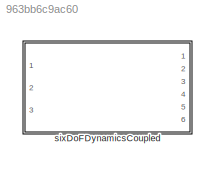
MODEL slx_963bb6c9ac60
KIND library
CONFIG AbsTol = auto
CONFIG EnableMultiTasking = off
CONFIG FixedStep = auto
CONFIG MaxStep = auto
CONFIG MinStep = auto
CONFIG RelTol = 1e-3
CONFIG SampleTimeConstraint = Unconstrained
CONFIG SolverName = VariableStepAuto
CONFIG StartTime = 0.0
CONFIG StopTime = 10.0
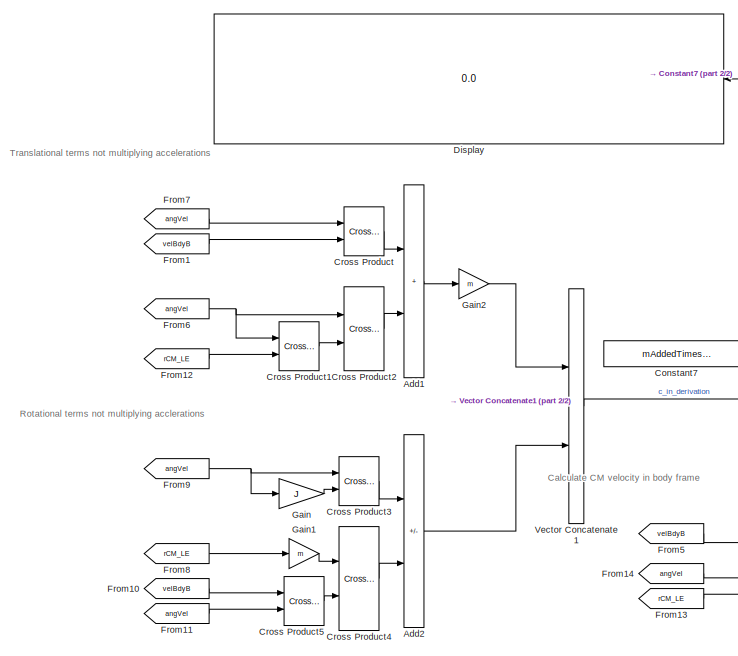
[diagram: sixDoFDynamicsCoupled - part 1/2, left side, full height]
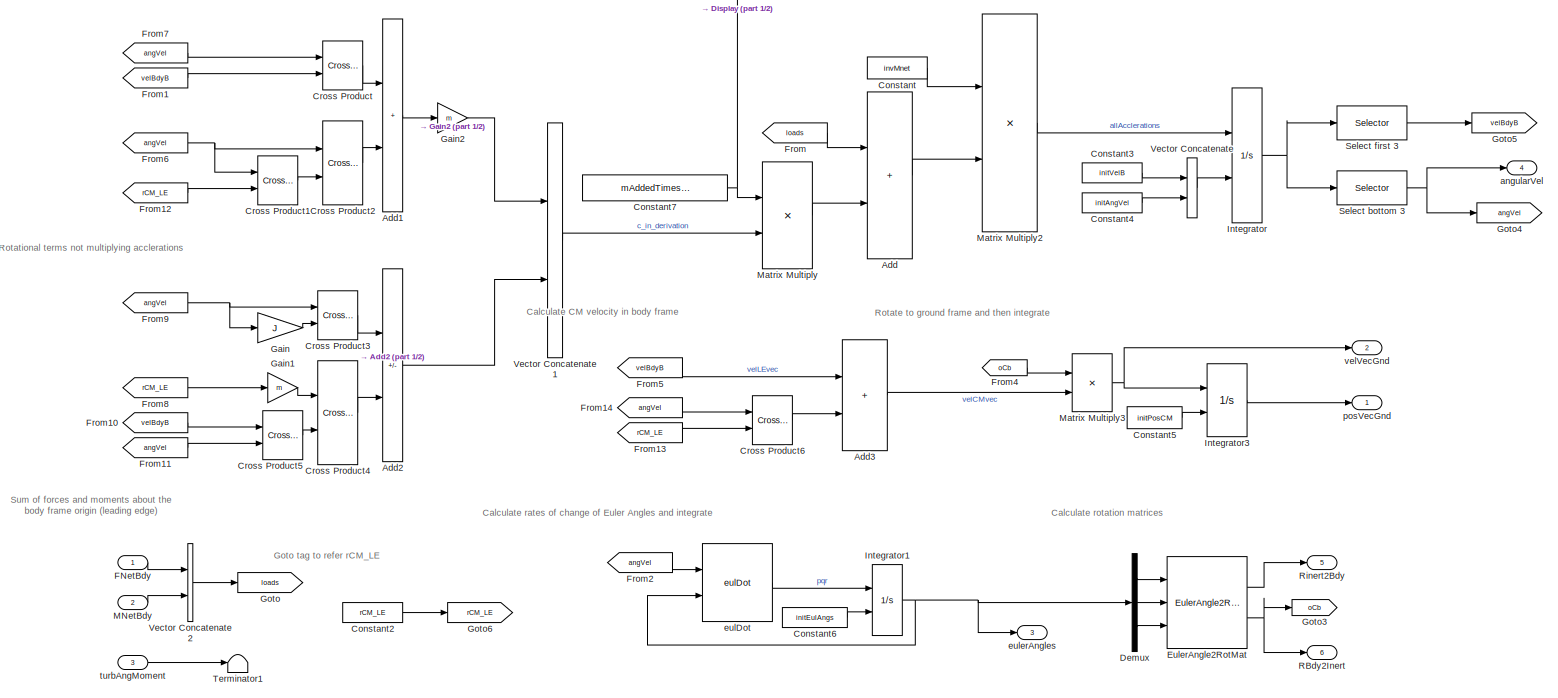
[diagram: sixDoFDynamicsCoupled - part 2/2, most of the canvas]
BLOCK [SubSystem] sixDoFDynamicsCoupled
  Ports = [3, 6]
  RequestExecContextInheritance = off
  VariantControl = (default)
BLOCK [Sum] sixDoFDynamicsCoupled/Add
  IconShape = rectangular
  Ports = [2, 1]
BLOCK [Sum] sixDoFDynamicsCoupled/Add1
  IconShape = rectangular
  Ports = [2, 1]
BLOCK [Sum] sixDoFDynamicsCoupled/Add2
  IconShape = rectangular
  Inputs = +-
  Ports = [2, 1]
BLOCK [Sum] sixDoFDynamicsCoupled/Add3
  IconShape = rectangular
  Ports = [2, 1]
BLOCK [Constant] sixDoFDynamicsCoupled/Constant
  Value = invMnet
  VectorParams1D = off
BLOCK [Constant] sixDoFDynamicsCoupled/Constant2
  Value = rCM_LE
  VectorParams1D = off
BLOCK [Constant] sixDoFDynamicsCoupled/Constant3
  Value = initVelB
  VectorParams1D = off
BLOCK [Constant] sixDoFDynamicsCoupled/Constant4
  Value = initAngVel
  VectorParams1D = off
BLOCK [Constant] sixDoFDynamicsCoupled/Constant5
  Value = initPosCM
  VectorParams1D = off
BLOCK [Constant] sixDoFDynamicsCoupled/Constant6
  Value = initEulAngs
  VectorParams1D = off
BLOCK [Constant] sixDoFDynamicsCoupled/Constant7
  Value = mAddedTimesMInvMinusEye
  VectorParams1D = off
BLOCK [Reference] sixDoFDynamicsCoupled/Cross Product  REF=vrlib/Utilities/Cross Product
  Ports = [2, 1]
  SourceBlock = vrlib/Utilities/Cross Product
  SourceProductBaseCode = SL
  SourceType = Cross Product
BLOCK [Reference] sixDoFDynamicsCoupled/Cross Product1  REF=vrlib/Utilities/Cross Product
  Ports = [2, 1]
  SourceBlock = vrlib/Utilities/Cross Product
  SourceProductBaseCode = SL
  SourceType = Cross Product
BLOCK [Reference] sixDoFDynamicsCoupled/Cross Product2  REF=vrlib/Utilities/Cross Product
  Ports = [2, 1]
  SourceBlock = vrlib/Utilities/Cross Product
  SourceProductBaseCode = SL
  SourceType = Cross Product
BLOCK [Reference] sixDoFDynamicsCoupled/Cross Product3  REF=vrlib/Utilities/Cross Product
  Ports = [2, 1]
  SourceBlock = vrlib/Utilities/Cross Product
  SourceProductBaseCode = SL
  SourceType = Cross Product
BLOCK [Reference] sixDoFDynamicsCoupled/Cross Product4  REF=vrlib/Utilities/Cross Product
  Ports = [2, 1]
  SourceBlock = vrlib/Utilities/Cross Product
  SourceProductBaseCode = SL
  SourceType = Cross Product
BLOCK [Reference] sixDoFDynamicsCoupled/Cross Product5  REF=vrlib/Utilities/Cross Product
  Ports = [2, 1]
  SourceBlock = vrlib/Utilities/Cross Product
  SourceProductBaseCode = SL
  SourceType = Cross Product
BLOCK [Reference] sixDoFDynamicsCoupled/Cross Product6  REF=vrlib/Utilities/Cross Product
  Ports = [2, 1]
  SourceBlock = vrlib/Utilities/Cross Product
  SourceProductBaseCode = SL
  SourceType = Cross Product
BLOCK [Demux] sixDoFDynamicsCoupled/Demux
  Outputs = 3
  Ports = [1, 3]
BLOCK [Display] sixDoFDynamicsCoupled/Display
  Decimation = 1
  NameLocation = top
  Ports = [1]
BLOCK [Reference] sixDoFDynamicsCoupled/EulerAngle2RotMat  REF=eulAng2RotMat_ul/EulerAngle2RotMat
  Ports = [3, 2]
  SourceBlock = eulAng2RotMat_ul/EulerAngle2RotMat
  SourceType = SubSystem
BLOCK [Inport] sixDoFDynamicsCoupled/FNetBdy
BLOCK [From] sixDoFDynamicsCoupled/From
  GotoTag = loads
BLOCK [From] sixDoFDynamicsCoupled/From1
  GotoTag = velBdyB
BLOCK [From] sixDoFDynamicsCoupled/From10
  GotoTag = velBdyB
BLOCK [From] sixDoFDynamicsCoupled/From11
  GotoTag = angVel
BLOCK [From] sixDoFDynamicsCoupled/From12
  GotoTag = rCM_LE
BLOCK [From] sixDoFDynamicsCoupled/From13
  GotoTag = rCM_LE
BLOCK [From] sixDoFDynamicsCoupled/From14
  GotoTag = angVel
BLOCK [From] sixDoFDynamicsCoupled/From2
  GotoTag = angVel
BLOCK [From] sixDoFDynamicsCoupled/From4
  GotoTag = oCb
BLOCK [From] sixDoFDynamicsCoupled/From5
  GotoTag = velBdyB
BLOCK [From] sixDoFDynamicsCoupled/From6
  GotoTag = angVel
BLOCK [From] sixDoFDynamicsCoupled/From7
  GotoTag = angVel
BLOCK [From] sixDoFDynamicsCoupled/From8
  GotoTag = rCM_LE
BLOCK [From] sixDoFDynamicsCoupled/From9
  GotoTag = angVel
BLOCK [Gain] sixDoFDynamicsCoupled/Gain
  Gain = J
  Multiplication = Matrix(K*u)
BLOCK [Gain] sixDoFDynamicsCoupled/Gain1
  Gain = m
BLOCK [Gain] sixDoFDynamicsCoupled/Gain2
  Gain = m
BLOCK [Goto] sixDoFDynamicsCoupled/Goto
  GotoTag = loads
BLOCK [Goto] sixDoFDynamicsCoupled/Goto3
  GotoTag = oCb
BLOCK [Goto] sixDoFDynamicsCoupled/Goto4
  GotoTag = angVel
BLOCK [Goto] sixDoFDynamicsCoupled/Goto5
  GotoTag = velBdyB
BLOCK [Goto] sixDoFDynamicsCoupled/Goto6
  GotoTag = rCM_LE
BLOCK [Integrator] sixDoFDynamicsCoupled/Integrator
  InitialConditionSource = external
  Ports = [2, 1]
BLOCK [Integrator] sixDoFDynamicsCoupled/Integrator1
  InitialCondition = initEulAngs
  InitialConditionSource = external
  Ports = [2, 1]
BLOCK [Integrator] sixDoFDynamicsCoupled/Integrator3
  InitialCondition = initPos
  InitialConditionSource = external
  Ports = [2, 1]
BLOCK [Inport] sixDoFDynamicsCoupled/MNetBdy
  Port = 2
BLOCK [Product] sixDoFDynamicsCoupled/Matrix Multiply
  Multiplication = Matrix(*)
  Ports = [2, 1]
BLOCK [Product] sixDoFDynamicsCoupled/Matrix Multiply2
  Multiplication = Matrix(*)
  Ports = [2, 1]
BLOCK [Product] sixDoFDynamicsCoupled/Matrix Multiply3
  Multiplication = Matrix(*)
  Ports = [2, 1]
BLOCK [Outport] sixDoFDynamicsCoupled/RBdy2Inert
  Port = 6
  VectorParamsAs1DForOutWhenUnconnected = off
BLOCK [Outport] sixDoFDynamicsCoupled/Rinert2Bdy
  Port = 5
  VectorParamsAs1DForOutWhenUnconnected = off
BLOCK [Selector] sixDoFDynamicsCoupled/Select bottom 3
  IndexOptions = Index vector (dialog),Index vector (dialog)
  Indices = [4 5 6],1
  InputPortWidth = 6
  NumberOfDimensions = 2
  OutputSizes = 1,1
  Ports = [1, 1]
BLOCK [Selector] sixDoFDynamicsCoupled/Select first 3
  IndexOptions = Index vector (dialog),Index vector (dialog)
  Indices = [1 2 3],1
  InputPortWidth = 6
  NumberOfDimensions = 2
  OutputSizes = 1,1
  Ports = [1, 1]
BLOCK [Terminator] sixDoFDynamicsCoupled/Terminator1
BLOCK [Concatenate] sixDoFDynamicsCoupled/Vector Concatenate
  Ports = [2, 1]
BLOCK [Concatenate] sixDoFDynamicsCoupled/Vector Concatenate1
  Ports = [2, 1]
BLOCK [Concatenate] sixDoFDynamicsCoupled/Vector Concatenate2
  Ports = [2, 1]
BLOCK [Outport] sixDoFDynamicsCoupled/angularVel
  Port = 4
  VectorParamsAs1DForOutWhenUnconnected = off
BLOCK [Reference] sixDoFDynamicsCoupled/eulDot  REF=eulDot/eulDot
  Ports = [2, 1]
  SourceBlock = eulDot/eulDot
  SourceType = SubSystem
BLOCK [Outport] sixDoFDynamicsCoupled/eulerAngles
  Port = 3
  VectorParamsAs1DForOutWhenUnconnected = off
BLOCK [Outport] sixDoFDynamicsCoupled/posVecGnd
  VectorParamsAs1DForOutWhenUnconnected = off
BLOCK [Inport] sixDoFDynamicsCoupled/turbAngMoment
  Port = 3
BLOCK [Outport] sixDoFDynamicsCoupled/velVecGnd
  Port = 2
  VectorParamsAs1DForOutWhenUnconnected = off
ANNOTATION sixDoFDynamicsCoupled: Calculate CM velocity in body frame
ANNOTATION sixDoFDynamicsCoupled: Calculate rates of change of Euler Angles and integrate
ANNOTATION sixDoFDynamicsCoupled: Calculate rotation matrices
ANNOTATION sixDoFDynamicsCoupled: Goto tag to refer rCM_LE
ANNOTATION sixDoFDynamicsCoupled: Rotate to ground frame and then integrate
ANNOTATION sixDoFDynamicsCoupled: Rotational terms not multiplying acclerations
ANNOTATION sixDoFDynamicsCoupled: Sum of forces and moments about the body frame origin (leading edge)
ANNOTATION sixDoFDynamicsCoupled: Translational terms not multiplying accelerations
LINE sixDoFDynamicsCoupled/Add1:1 -> sixDoFDynamicsCoupled/Gain2:1
LINE sixDoFDynamicsCoupled/Add2:1 -> sixDoFDynamicsCoupled/Vector Concatenate1:2
LINE sixDoFDynamicsCoupled/Add3:1 -> sixDoFDynamicsCoupled/Matrix Multiply3:2
LINE sixDoFDynamicsCoupled/Add:1 -> sixDoFDynamicsCoupled/Matrix Multiply2:2
LINE sixDoFDynamicsCoupled/Constant2:1 -> sixDoFDynamicsCoupled/Goto6:1
LINE sixDoFDynamicsCoupled/Constant3:1 -> sixDoFDynamicsCoupled/Vector Concatenate:1
LINE sixDoFDynamicsCoupled/Constant4:1 -> sixDoFDynamicsCoupled/Vector Concatenate:2
LINE sixDoFDynamicsCoupled/Constant5:1 -> sixDoFDynamicsCoupled/Integrator3:2
LINE sixDoFDynamicsCoupled/Constant6:1 -> sixDoFDynamicsCoupled/Integrator1:2
NET sixDoFDynamicsCoupled/Constant7:1 -> sixDoFDynamicsCoupled/Display:1, sixDoFDynamicsCoupled/Matrix Multiply:1
LINE sixDoFDynamicsCoupled/Constant:1 -> sixDoFDynamicsCoupled/Matrix Multiply2:1
LINE sixDoFDynamicsCoupled/Cross Product1:1 -> sixDoFDynamicsCoupled/Cross Product2:2
LINE sixDoFDynamicsCoupled/Cross Product2:1 -> sixDoFDynamicsCoupled/Add1:2
LINE sixDoFDynamicsCoupled/Cross Product3:1 -> sixDoFDynamicsCoupled/Add2:1
LINE sixDoFDynamicsCoupled/Cross Product4:1 -> sixDoFDynamicsCoupled/Add2:2
LINE sixDoFDynamicsCoupled/Cross Product5:1 -> sixDoFDynamicsCoupled/Cross Product4:2
LINE sixDoFDynamicsCoupled/Cross Product6:1 -> sixDoFDynamicsCoupled/Add3:2
LINE sixDoFDynamicsCoupled/Cross Product:1 -> sixDoFDynamicsCoupled/Add1:1
LINE sixDoFDynamicsCoupled/Demux:1 -> sixDoFDynamicsCoupled/EulerAngle2RotMat:1
LINE sixDoFDynamicsCoupled/Demux:2 -> sixDoFDynamicsCoupled/EulerAngle2RotMat:2
LINE sixDoFDynamicsCoupled/Demux:3 -> sixDoFDynamicsCoupled/EulerAngle2RotMat:3
LINE sixDoFDynamicsCoupled/EulerAngle2RotMat:1 -> sixDoFDynamicsCoupled/Rinert2Bdy:1
NET sixDoFDynamicsCoupled/EulerAngle2RotMat:2 -> sixDoFDynamicsCoupled/Goto3:1, sixDoFDynamicsCoupled/RBdy2Inert:1
LINE sixDoFDynamicsCoupled/FNetBdy:1 -> sixDoFDynamicsCoupled/Vector Concatenate2:1
LINE sixDoFDynamicsCoupled/From10:1 -> sixDoFDynamicsCoupled/Cross Product5:1
LINE sixDoFDynamicsCoupled/From11:1 -> sixDoFDynamicsCoupled/Cross Product5:2
LINE sixDoFDynamicsCoupled/From12:1 -> sixDoFDynamicsCoupled/Cross Product1:2
LINE sixDoFDynamicsCoupled/From13:1 -> sixDoFDynamicsCoupled/Cross Product6:2
LINE sixDoFDynamicsCoupled/From14:1 -> sixDoFDynamicsCoupled/Cross Product6:1
LINE sixDoFDynamicsCoupled/From1:1 -> sixDoFDynamicsCoupled/Cross Product:2
LINE sixDoFDynamicsCoupled/From2:1 -> sixDoFDynamicsCoupled/eulDot:1
LINE sixDoFDynamicsCoupled/From4:1 -> sixDoFDynamicsCoupled/Matrix Multiply3:1
LINE sixDoFDynamicsCoupled/From5:1 -> sixDoFDynamicsCoupled/Add3:1
NET sixDoFDynamicsCoupled/From6:1 -> sixDoFDynamicsCoupled/Cross Product1:1, sixDoFDynamicsCoupled/Cross Product2:1
LINE sixDoFDynamicsCoupled/From7:1 -> sixDoFDynamicsCoupled/Cross Product:1
LINE sixDoFDynamicsCoupled/From8:1 -> sixDoFDynamicsCoupled/Gain1:1
NET sixDoFDynamicsCoupled/From9:1 -> sixDoFDynamicsCoupled/Cross Product3:1, sixDoFDynamicsCoupled/Gain:1
LINE sixDoFDynamicsCoupled/From:1 -> sixDoFDynamicsCoupled/Add:1
LINE sixDoFDynamicsCoupled/Gain1:1 -> sixDoFDynamicsCoupled/Cross Product4:1
LINE sixDoFDynamicsCoupled/Gain2:1 -> sixDoFDynamicsCoupled/Vector Concatenate1:1
LINE sixDoFDynamicsCoupled/Gain:1 -> sixDoFDynamicsCoupled/Cross Product3:2
NET sixDoFDynamicsCoupled/Integrator1:1 -> sixDoFDynamicsCoupled/Demux:1, sixDoFDynamicsCoupled/eulDot:2, sixDoFDynamicsCoupled/eulerAngles:1
LINE sixDoFDynamicsCoupled/Integrator3:1 -> sixDoFDynamicsCoupled/posVecGnd:1
NET sixDoFDynamicsCoupled/Integrator:1 -> sixDoFDynamicsCoupled/Select bottom 3:1, sixDoFDynamicsCoupled/Select first 3:1
LINE sixDoFDynamicsCoupled/MNetBdy:1 -> sixDoFDynamicsCoupled/Vector Concatenate2:2
LINE sixDoFDynamicsCoupled/Matrix Multiply2:1 -> sixDoFDynamicsCoupled/Integrator:1
NET sixDoFDynamicsCoupled/Matrix Multiply3:1 -> sixDoFDynamicsCoupled/Integrator3:1, sixDoFDynamicsCoupled/velVecGnd:1
LINE sixDoFDynamicsCoupled/Matrix Multiply:1 -> sixDoFDynamicsCoupled/Add:2
NET sixDoFDynamicsCoupled/Select bottom 3:1 -> sixDoFDynamicsCoupled/Goto4:1, sixDoFDynamicsCoupled/angularVel:1
LINE sixDoFDynamicsCoupled/Select first 3:1 -> sixDoFDynamicsCoupled/Goto5:1
LINE sixDoFDynamicsCoupled/Vector Concatenate1:1 -> sixDoFDynamicsCoupled/Matrix Multiply:2
LINE sixDoFDynamicsCoupled/Vector Concatenate2:1 -> sixDoFDynamicsCoupled/Goto:1
LINE sixDoFDynamicsCoupled/Vector Concatenate:1 -> sixDoFDynamicsCoupled/Integrator:2
LINE sixDoFDynamicsCoupled/eulDot:1 -> sixDoFDynamicsCoupled/Integrator1:1
LINE sixDoFDynamicsCoupled/turbAngMoment:1 -> sixDoFDynamicsCoupled/Terminator1:1
note: NET lines group one-source signal fan-out (src -> all destinations, sorted); 1:1 wires keep LINE
